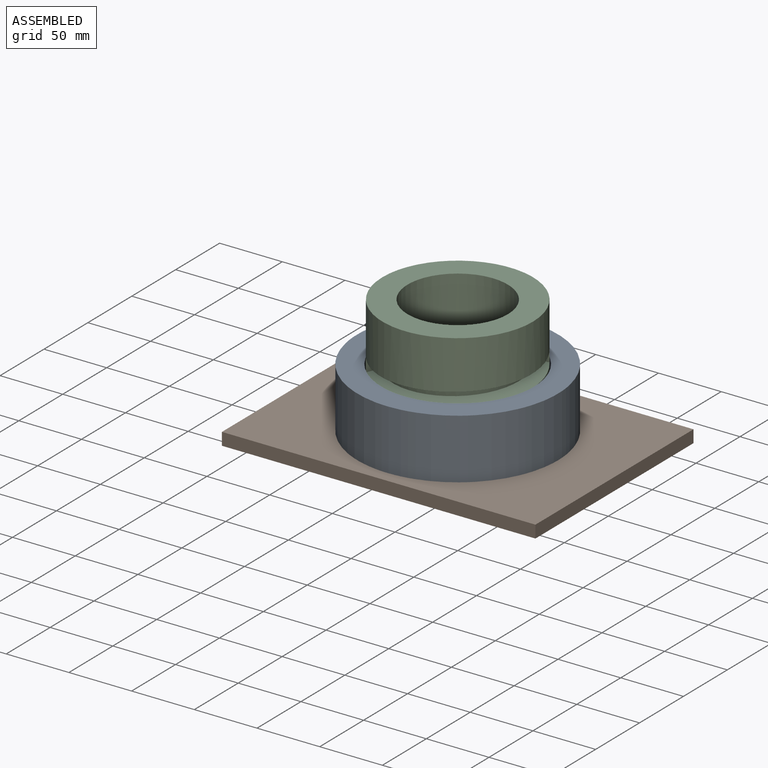
[diagram: assembled view]
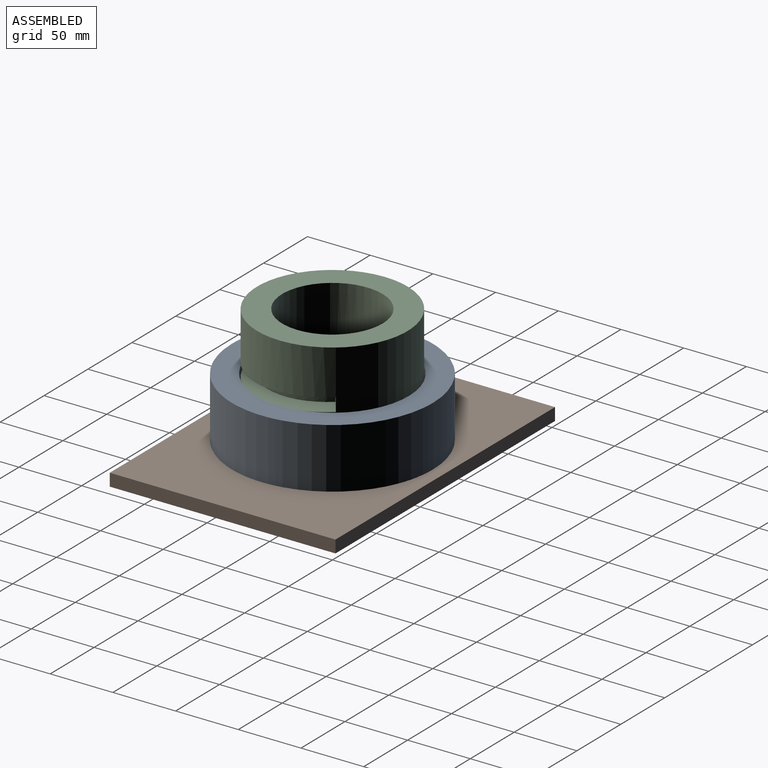
[diagram: assembled view, second angle]
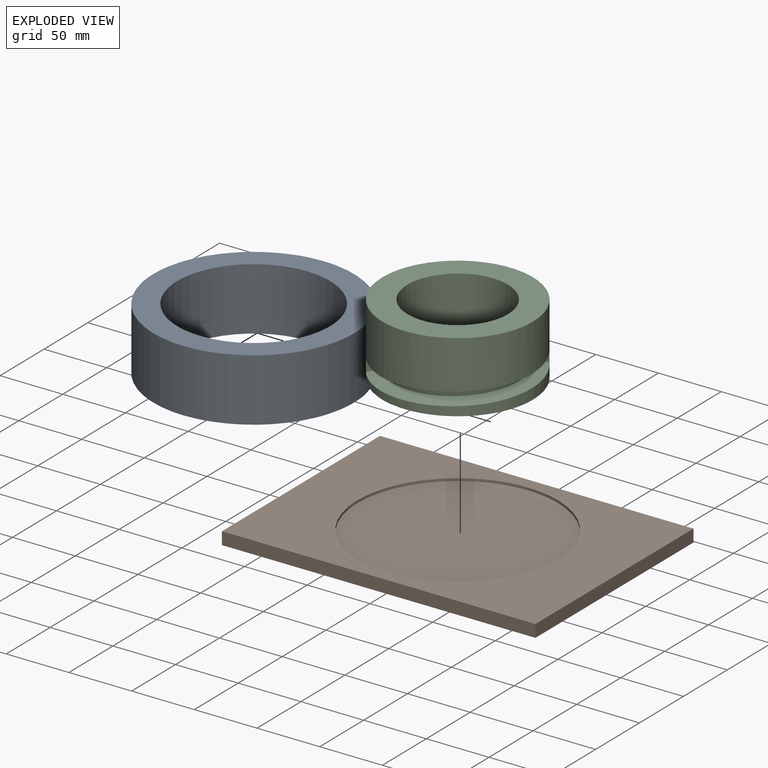
[diagram: exploded view]
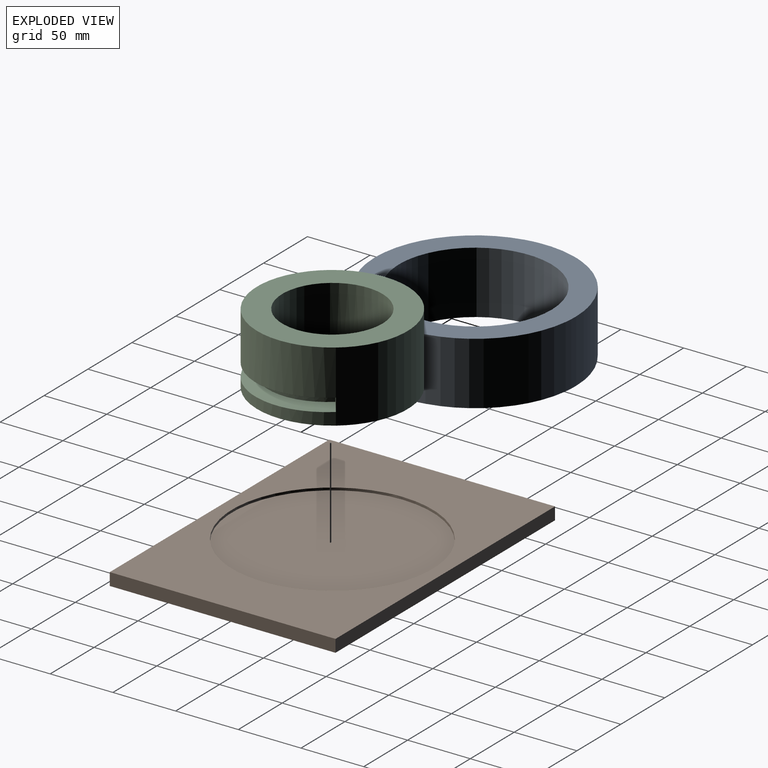
[diagram: exploded view, second angle]
ASSEMBLY  parts=3 mates=2
PART A: 7 faces, bbox 160x160x50 mm
  f0: cylinder r=80mm len=160mm, axis (0,0,-1), area 25132.7mm2, adj f1,f2
  f1: plane 160.04x160.04mm, normal (0,0,-1), area 8416.3mm2, adj f0,f3
  f2: plane 160.04x160.04mm, normal (0,0,1), area 8416.3mm2, adj f0,f3
  f3: cylinder r=61mm len=122mm, axis (0,0,-1), area 19138.1mm2, adj f1,f2,f5
  f4: plane 0x0mm, normal (0,1,0), area 0mm2, adj f6
  f5: cylinder r=2.5mm len=8.5mm, axis (0,1,0), area 133.5mm2, adj f3,f6
  f6: torus R=0mm, axis (0,1,0), area 39.3mm2, adj f4,f5
PART B: 8 faces, bbox 250x180x10 mm
  f0: plane 250x180mm, normal (0,0,-1), area 45000mm2, adj f1,f2,f3,f4
  f1: plane 180x10mm, normal (-1,0,0), area 1800mm2, adj f0,f2,f4,f5
  f2: plane 250x10mm, normal (0,-1,0), area 2500mm2, adj f0,f1,f3,f5
  f3: plane 180x10mm, normal (1,0,0), area 1800mm2, adj f0,f2,f4,f5
  f4: plane 250x10mm, normal (0,1,0), area 2500mm2, adj f0,f1,f3,f5
  f5: plane 250.04x180.04mm, normal (0,0,1), area 24893.9mm2, adj f1,f2,f3,f4,f7
  f6: plane 160.04x160.04mm, normal (0,0,1), area 20106.1mm2, adj f7
  f7: cylinder r=80mm len=160mm, axis (0,0,1), area 1005.3mm2, adj f5,f6
PART C: 9 faces, bbox 120x120x56.3 mm
  f0: cylinder r=50mm len=100mm, axis (0,0,1), area 785.4mm2, adj f1,f2,f3,f4
  f1: bspline ~120x60mm, area 1790.4mm2, adj f0,f2,f3,f5
  f2: plane 10.36x10mm, normal (0,1,0), area 76.8mm2, adj f0,f1,f4,f5
  f3: plane 10.36x10mm, normal (0,1,0), area 76.8mm2, adj f0,f1,f4,f5
  f4: bspline ~120x60mm, area 1790.4mm2, adj f0,f2,f3,f5
  f5: cylinder r=60mm len=120mm, axis (0,0,-1), area 19261.1mm2, adj f1,f2,f3,f4,f6,f7
  f6: plane 120.03x120.03mm, normal (0,0,-1), area 6283.1mm2, adj f5,f8
  f7: plane 120.03x120.03mm, normal (0,0,1), area 6283.1mm2, adj f5,f8
  f8: cylinder r=40mm len=80mm, axis (0,0,-1), area 14142.5mm2, adj f6,f7
PLACE A rot(axis=(0,0,1),82.6deg) t=(0,0,8)mm
PLACE B at identity fixed
PLACE C rot(axis=(0,0,-1),142.8deg) t=(0,0,48.27)mm
MATE cylindrical C.f8 <-> A.f3  axis (0,0,-1) through (0,0,76.4)mm
MATE revolute A.f0 <-> B.f7  axis (0,0,-1) through (0,0,8)mm
